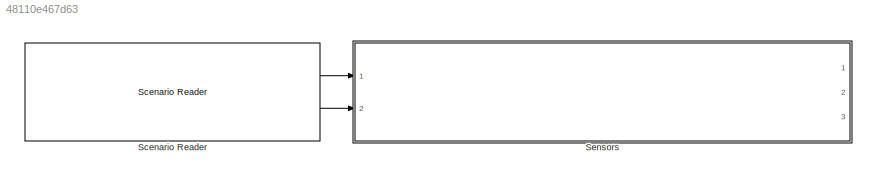
MODEL slx_48110e467d63
KIND model
CONFIG AbsTol = auto
CONFIG EnableMultiTasking = off
CONFIG FixedStep = auto
CONFIG MaxStep = auto
CONFIG MinStep = auto
CONFIG RelTol = 1e-3
CONFIG SampleTimeConstraint = Unconstrained
CONFIG SolverName = FixedStepDiscrete
CONFIG StartTime = 0.0
CONFIG StopTime = 10.0
WORKSPACE source: mxarray member
WORKSPACE firstWarning = 1
WORKSPACE originalScenarioChecksum = '4A544F35B5F16CEB30B2C31E0C92B54A'
BLOCK [Reference] Scenario Reader  REF=drivingscenarioandsensors/Scenario Reader
  Ports = [0, 2]
  SourceBlock = drivingscenarioandsensors/Scenario Reader
  SourceProductBaseCode = DR
  SourceType = driving.scenario.internal.ScenarioReader
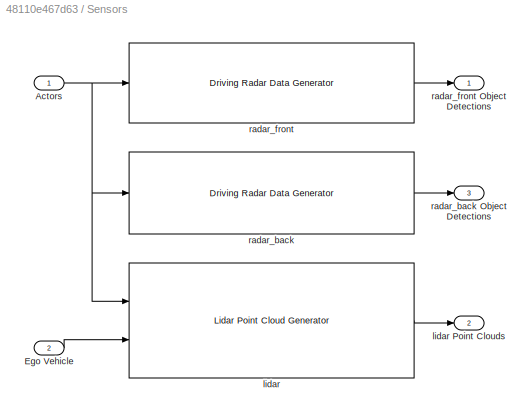
BLOCK [SubSystem] Sensors
  Ports = [2, 3]
  RequestExecContextInheritance = off
BLOCK [Inport] Sensors/Actors
BLOCK [Inport] Sensors/Ego Vehicle
  Port = 2
BLOCK [Reference] Sensors/lidar  REF=drivingscenarioandsensors/Lidar Point Cloud Generator
  Ports = [2, 1]
  SourceBlock = drivingscenarioandsensors/Lidar Point Cloud Generator
  SourceProductBaseCode = DR
  SourceType = lidarPointCloudGenerator
BLOCK [Outport] Sensors/lidar Point Clouds
  Port = 2
BLOCK [Reference] Sensors/radar_back  REF=drivingscenarioandsensors/Driving Radar Data Generator
  Ports = [1, 1]
  SourceBlock = drivingscenarioandsensors/Driving Radar Data Generator
  SourceProductBaseCode = DR
  SourceType = drivingRadarDataGenerator
BLOCK [Outport] Sensors/radar_back Object Detections
  Port = 3
BLOCK [Reference] Sensors/radar_front  REF=drivingscenarioandsensors/Driving Radar Data Generator
  Ports = [1, 1]
  SourceBlock = drivingscenarioandsensors/Driving Radar Data Generator
  SourceProductBaseCode = DR
  SourceType = drivingRadarDataGenerator
BLOCK [Outport] Sensors/radar_front Object Detections
LINE Scenario Reader:1 -> Sensors:1
LINE Scenario Reader:2 -> Sensors:2
NET Sensors/Actors:1 -> Sensors/lidar:1, Sensors/radar_back:1, Sensors/radar_front:1
LINE Sensors/Ego Vehicle:1 -> Sensors/lidar:2
LINE Sensors/lidar:1 -> Sensors/lidar Point Clouds:1
LINE Sensors/radar_back:1 -> Sensors/radar_back Object Detections:1
LINE Sensors/radar_front:1 -> Sensors/radar_front Object Detections:1
note: NET lines group one-source signal fan-out (src -> all destinations, sorted); 1:1 wires keep LINE
